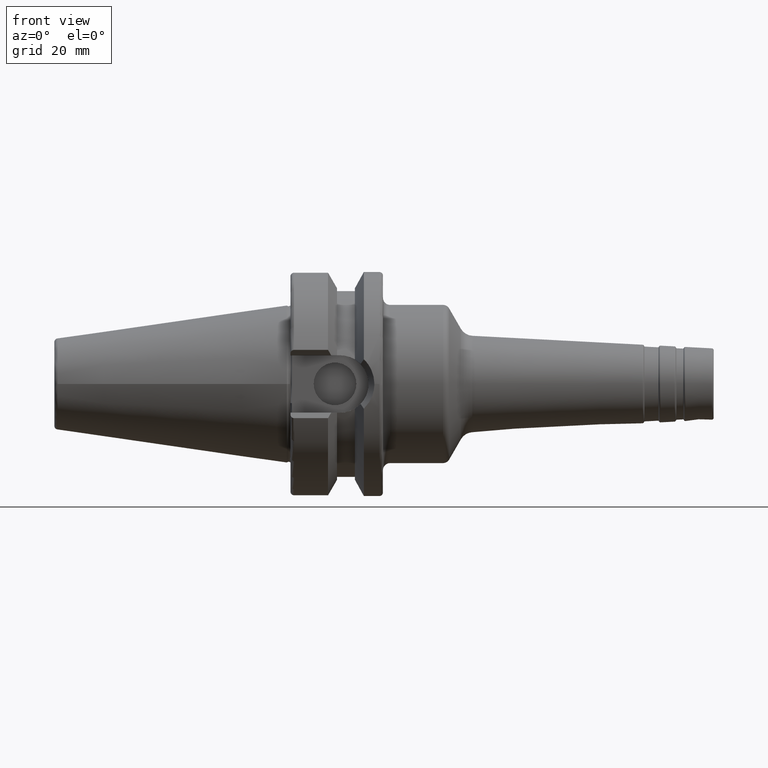
[diagram: clean part render]
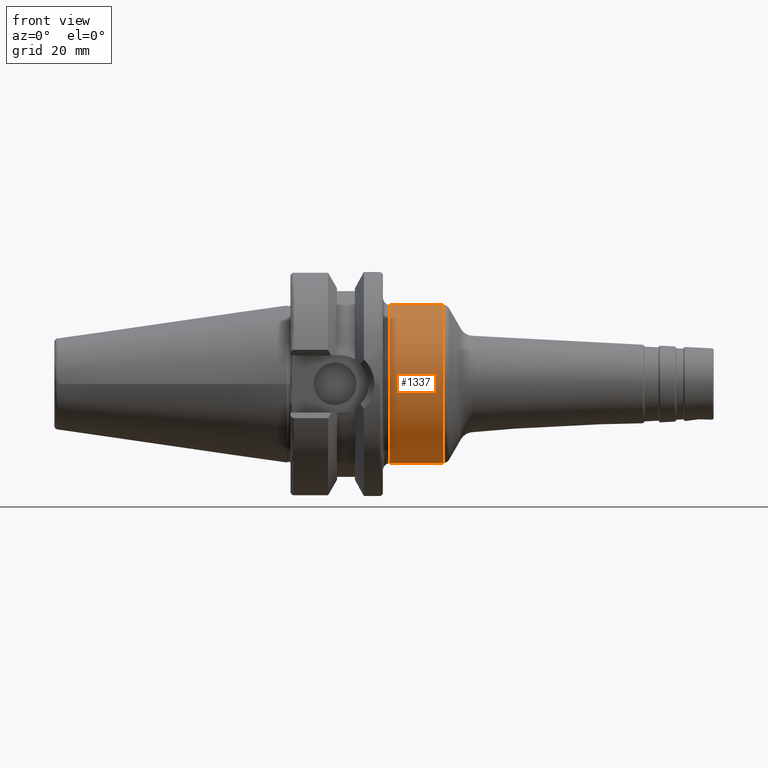
[diagram: same view with one face highlighted and labeled with its STEP entity id]
A machine part, front view. The second image highlights one B-rep face of the part: STEP entity #1337.
In plain terms, the highlighted cylindrical surface (bore or boss wall) has radius 22.25 mm, axis along (1, 0, 0).
Its self-contained STEP definition (entity closure, byte-faithful):
#148=FACE_OUTER_BOUND('',#236,.T.);
#236=EDGE_LOOP('',(#975,#976,#977,#978,#979));
#316=LINE('',#2157,#389);
#389=VECTOR('',#1749,22.25);
#485=CIRCLE('',#1481,22.25);
#486=CIRCLE('',#1482,22.25);
#489=CIRCLE('',#1486,22.25);
#575=VERTEX_POINT('',#2147);
#576=VERTEX_POINT('',#2148);
#578=VERTEX_POINT('',#2155);
#722=EDGE_CURVE('',#575,#576,#485,.T.);
#723=EDGE_CURVE('',#576,#575,#486,.T.);
#726=EDGE_CURVE('',#578,#578,#489,.T.);
#727=EDGE_CURVE('',#578,#576,#316,.T.);
#975=ORIENTED_EDGE('',*,*,#726,.F.);
#976=ORIENTED_EDGE('',*,*,#727,.T.);
#977=ORIENTED_EDGE('',*,*,#722,.F.);
#978=ORIENTED_EDGE('',*,*,#723,.F.);
#979=ORIENTED_EDGE('',*,*,#727,.F.);
#1297=CYLINDRICAL_SURFACE('',#1485,22.25);
#1337=ADVANCED_FACE('',(#148),#1297,.T.);
#1481=AXIS2_PLACEMENT_3D('',#2149,#1737,#1738);
#1482=AXIS2_PLACEMENT_3D('',#2150,#1739,#1740);
#1485=AXIS2_PLACEMENT_3D('',#2154,#1745,#1746);
#1486=AXIS2_PLACEMENT_3D('',#2156,#1747,#1748);
#1737=DIRECTION('center_axis',(-1.,0.,0.));
#1738=DIRECTION('ref_axis',(0.,-1.22464679914735E-16,1.));
#1739=DIRECTION('center_axis',(-1.,0.,0.));
#1740=DIRECTION('ref_axis',(0.,-1.22464679914735E-16,1.));
#1745=DIRECTION('center_axis',(1.,0.,0.));
#1746=DIRECTION('ref_axis',(0.,0.,-1.));
#1747=DIRECTION('center_axis',(1.,0.,0.));
#1748=DIRECTION('ref_axis',(0.,1.22464679914735E-16,1.));
#1749=DIRECTION('',(-1.,0.,0.));
#2147=CARTESIAN_POINT('',(29.,0.,-22.25));
#2148=CARTESIAN_POINT('',(29.,-2.72483912810286E-15,22.25));
#2149=CARTESIAN_POINT('Origin',(29.,0.,0.));
#2150=CARTESIAN_POINT('Origin',(29.,0.,0.));
#2154=CARTESIAN_POINT('Origin',(36.0227471928978,0.,0.));
#2155=CARTESIAN_POINT('',(43.8907938474164,-2.72483912810286E-15,22.25));
#2156=CARTESIAN_POINT('Origin',(43.8907938474164,0.,0.));
#2157=CARTESIAN_POINT('',(36.0227471928978,-2.72483912810286E-15,22.25));